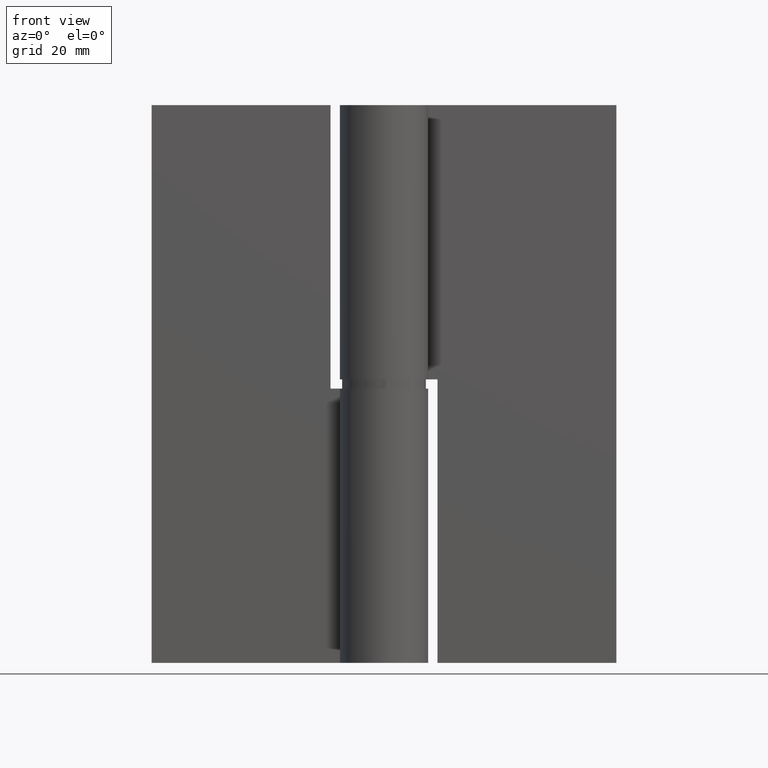
[diagram: clean part render]
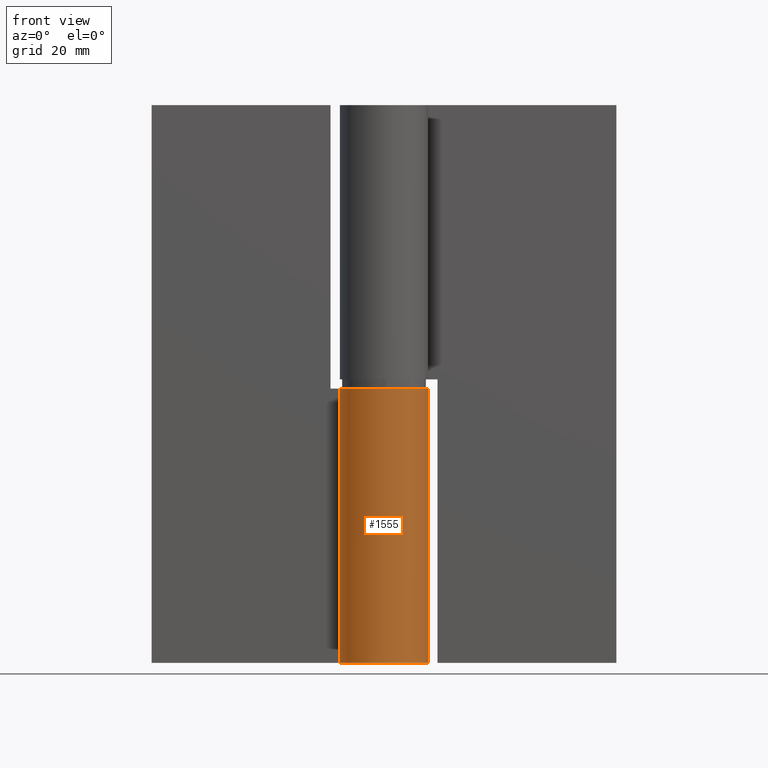
[diagram: same view with one face highlighted and labeled with its STEP entity id]
A machine part, front view. The second image highlights one B-rep face of the part: STEP entity #1555.
In plain terms, the highlighted face is a freeform B-spline surface patch.
Its self-contained STEP definition (entity closure, byte-faithful):
#1337=CARTESIAN_POINT('',(-8.108483212044041,4.950000000000000,59.0));
#1338=VERTEX_POINT('',#1337);
#1344=CARTESIAN_POINT('',(0.0,9.500000000000000,59.0));
#1345=VERTEX_POINT('',#1344);
#1346=CARTESIAN_POINT('',(-8.108483212044039,4.950000000000000,59.0));
#1347=CARTESIAN_POINT('',(-11.930878856379517,-1.311379982198882,59.0));
#1348=CARTESIAN_POINT('',(-6.839733550264772,-6.593030028854900,59.0));
#1349=CARTESIAN_POINT('',(-1.748588244150026,-11.874680075510920,59.0));
#1350=CARTESIAN_POINT('',(4.648924606831133,-8.284775193087619,59.0));
#1351=CARTESIAN_POINT('',(11.046437457812283,-4.694870310664319,59.0));
#1352=CARTESIAN_POINT('',(9.191174145187667,2.402564844667832,59.0));
#1353=CARTESIAN_POINT('',(7.335910832563044,9.500000000000000,59.0));
#1354=CARTESIAN_POINT('',(0.0,9.500000000000000,59.0));
#1362=(BOUNDED_CURVE()B_SPLINE_CURVE(2,(#1346,#1347,#1348,#1349,#1350,#1351,#1352,#1353,#1354),.UNSPECIFIED.,.F.,.U.)B_SPLINE_CURVE_WITH_KNOTS((3,2,2,2,3),(0.0,0.250000000000000,0.500000000000000,0.750000000000000,1.0),.UNSPECIFIED.)CURVE()GEOMETRIC_REPRESENTATION_ITEM()RATIONAL_B_SPLINE_CURVE((1.0,0.791486437848626,1.0,0.791486437848626,1.0,0.791486437848626,1.0,0.791486437848626,1.0))REPRESENTATION_ITEM(''));
#1363=EDGE_CURVE('',#1338,#1345,#1362,.T.);
#1400=CARTESIAN_POINT('',(5.816880E-016,9.500000000000000,0.0));
#1401=VERTEX_POINT('',#1400);
#1407=CARTESIAN_POINT('',(-8.108483212044041,4.950000000000000,0.0));
#1408=VERTEX_POINT('',#1407);
#1409=CARTESIAN_POINT('',(0.0,9.500000000000000,0.0));
#1410=CARTESIAN_POINT('',(7.335910832563036,9.500000000000000,0.0));
#1411=CARTESIAN_POINT('',(9.191174145187663,2.402564844667845,0.0));
#1412=CARTESIAN_POINT('',(11.046437457812292,-4.694870310664311,0.0));
#1413=CARTESIAN_POINT('',(4.648924606831137,-8.284775193087617,0.0));
#1414=CARTESIAN_POINT('',(-1.748588244150026,-11.874680075510922,0.0));
#1415=CARTESIAN_POINT('',(-6.839733550264772,-6.593030028854900,0.0));
#1416=CARTESIAN_POINT('',(-11.930878856379511,-1.311379982198887,0.0));
#1417=CARTESIAN_POINT('',(-8.108483212044042,4.949999999999993,0.0));
#1425=(BOUNDED_CURVE()B_SPLINE_CURVE(2,(#1409,#1410,#1411,#1412,#1413,#1414,#1415,#1416,#1417),.UNSPECIFIED.,.F.,.U.)B_SPLINE_CURVE_WITH_KNOTS((3,2,2,2,3),(0.0,0.250000000000000,0.500000000000000,0.750000000000000,1.0),.UNSPECIFIED.)CURVE()GEOMETRIC_REPRESENTATION_ITEM()RATIONAL_B_SPLINE_CURVE((1.0,0.791486437848626,1.0,0.791486437848626,1.0,0.791486437848626,1.0,0.791486437848626,1.0))REPRESENTATION_ITEM(''));
#1426=EDGE_CURVE('',#1401,#1408,#1425,.T.);
#1513=CARTESIAN_POINT('',(5.816880E-016,9.500000000000000,0.0));
#1514=CARTESIAN_POINT('',(0.0,9.500000000000000,59.0));
#1515=QUASI_UNIFORM_CURVE('',1,(#1513,#1514),.UNSPECIFIED.,.F.,.U.);
#1516=EDGE_CURVE('',#1401,#1345,#1515,.T.);
#1523=CARTESIAN_POINT('',(-0.347636960276540,9.493637266287859,-1.475000000000001));
#1524=CARTESIAN_POINT('',(-0.347636960276540,9.493637266287859,60.511875000000011));
#1525=CARTESIAN_POINT('',(11.516498017241423,9.928076849790887,-1.475000000000001));
#1526=CARTESIAN_POINT('',(11.516498017241423,9.928076849790887,60.511875000000011));
#1527=CARTESIAN_POINT('',(9.338813136834549,-1.742575448950890,-1.475000000000001));
#1528=CARTESIAN_POINT('',(9.338813136834549,-1.742575448950890,60.511875000000011));
#1529=CARTESIAN_POINT('',(7.161128256427674,-13.413227747692670,-1.475000000000001));
#1530=CARTESIAN_POINT('',(7.161128256427674,-13.413227747692670,60.511875000000011));
#1531=CARTESIAN_POINT('',(-3.747967232109454,-8.729418172308723,-1.475000000000001));
#1532=CARTESIAN_POINT('',(-3.747967232109454,-8.729418172308723,60.511875000000011));
#1533=CARTESIAN_POINT('',(-14.657062720646582,-4.045608596924778,-1.475000000000001));
#1534=CARTESIAN_POINT('',(-14.657062720646582,-4.045608596924778,60.511875000000011));
#1535=CARTESIAN_POINT('',(-7.695114940517940,5.570925062520366,-1.475000000000001));
#1536=CARTESIAN_POINT('',(-7.695114940517940,5.570925062520366,60.511875000000011));
#1544=(BOUNDED_SURFACE()B_SPLINE_SURFACE(1,2,((#1523,#1525,#1527,#1529,#1531,#1533,#1535),(#1524,#1526,#1528,#1530,#1532,#1534,#1536)),.UNSPECIFIED.,.F.,.F.,.U.)B_SPLINE_SURFACE_WITH_KNOTS((2,2),(3,2,2,3),(0.0,61.986875000000012),(0.0,18.260944577172101,36.521889154344208,54.782833731516313),.UNSPECIFIED.)GEOMETRIC_REPRESENTATION_ITEM()RATIONAL_B_SPLINE_SURFACE(((1.0,0.624788514543960,1.0,0.624788514543960,1.0,0.624788514543960,1.0),(1.0,0.624788514543960,1.0,0.624788514543960,1.0,0.624788514543960,1.0)))REPRESENTATION_ITEM('')SURFACE());
#1545=ORIENTED_EDGE('',*,*,#1363,.F.);
#1546=CARTESIAN_POINT('',(-8.108483212044041,4.950000000000000,0.0));
#1547=CARTESIAN_POINT('',(-8.108483212044041,4.950000000000000,59.0));
#1548=QUASI_UNIFORM_CURVE('',1,(#1546,#1547),.UNSPECIFIED.,.F.,.U.);
#1549=EDGE_CURVE('',#1408,#1338,#1548,.T.);
#1550=ORIENTED_EDGE('',*,*,#1549,.F.);
#1551=ORIENTED_EDGE('',*,*,#1426,.F.);
#1552=ORIENTED_EDGE('',*,*,#1516,.T.);
#1553=EDGE_LOOP('',(#1545,#1550,#1551,#1552));
#1554=FACE_OUTER_BOUND('',#1553,.T.);
#1555=ADVANCED_FACE('',(#1554),#1544,.T.);